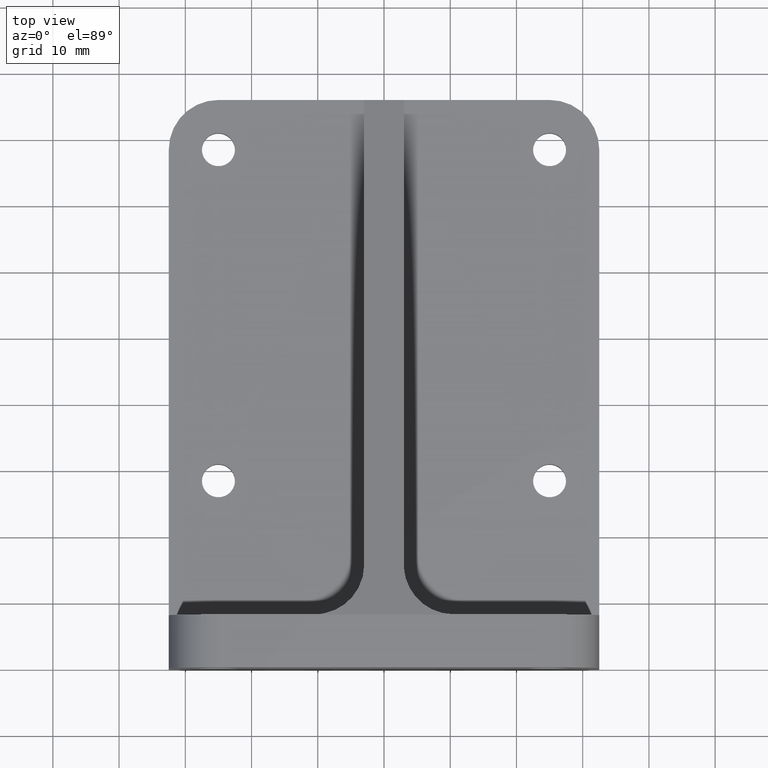
[diagram: clean part render]
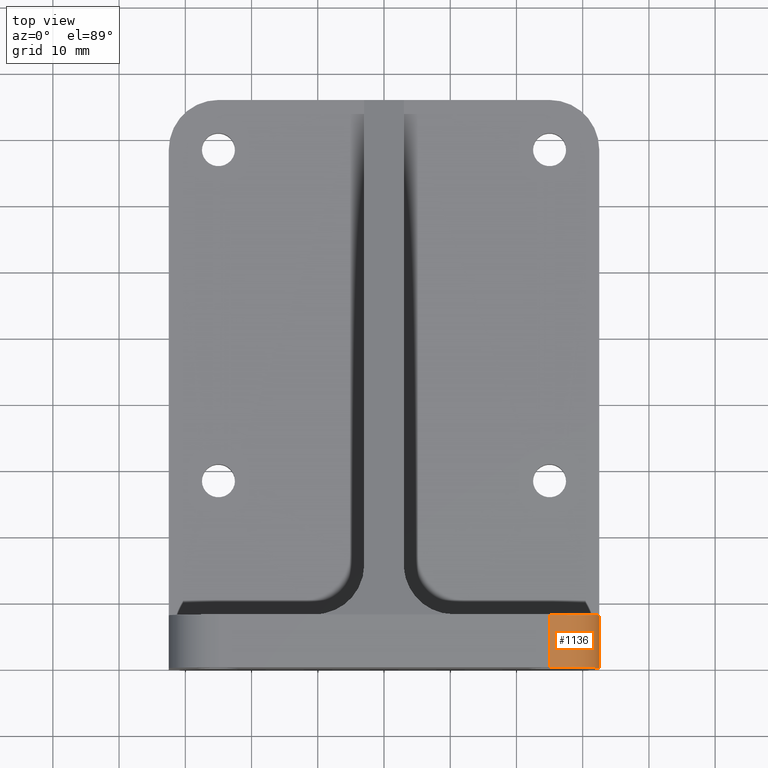
[diagram: same view with one face highlighted and labeled with its STEP entity id]
A machine part, top view. The second image highlights one B-rep face of the part: STEP entity #1136.
In plain terms, the highlighted cylindrical surface (partial cylindrical patch) has radius 7.5 mm, axis along (0, -1, 0).
Its self-contained STEP definition (entity closure, byte-faithful):
#45 = ORIENTED_EDGE ( 'NONE', *, *, #175, .F. ) ;
#89 = LINE ( 'NONE', #852, #658 ) ;
#109 = EDGE_LOOP ( 'NONE', ( #670, #153, #45, #728 ) ) ;
#139 = VERTEX_POINT ( 'NONE', #144 ) ;
#144 = CARTESIAN_POINT ( 'NONE',  ( 32.50000000000000000, 7.999999999999996447, 16.50000000000000000 ) ) ;
#153 = ORIENTED_EDGE ( 'NONE', *, *, #1070, .F. ) ;
#175 = EDGE_CURVE ( 'NONE', #673, #791, #441, .T. ) ;
#213 = DIRECTION ( 'NONE',  ( -0.0000000000000000000, 1.000000000000000000, -0.0000000000000000000 ) ) ;
#299 = DIRECTION ( 'NONE',  ( 0.0000000000000000000, -1.000000000000000000, 0.0000000000000000000 ) ) ;
#312 = VECTOR ( 'NONE', #391, 1000.000000000000000 ) ;
#315 = DIRECTION ( 'NONE',  ( 0.0000000000000000000, -1.224646799147352961E-16, 1.000000000000000000 ) ) ;
#391 = DIRECTION ( 'NONE',  ( 0.0000000000000000000, -1.000000000000000000, 0.0000000000000000000 ) ) ;
#405 = LINE ( 'NONE', #1159, #312 ) ;
#441 = CIRCLE ( 'NONE', #1078, 7.500000000000000000 ) ;
#449 = CIRCLE ( 'NONE', #965, 7.500000000000000000 ) ;
#457 = EDGE_CURVE ( 'NONE', #139, #673, #405, .T. ) ;
#470 = CYLINDRICAL_SURFACE ( 'NONE', #745, 7.500000000000000000 ) ;
#580 = DIRECTION ( 'NONE',  ( 0.0000000000000000000, 0.0000000000000000000, -1.000000000000000000 ) ) ;
#651 = CARTESIAN_POINT ( 'NONE',  ( 32.50000000000000000, -2.020667218593133100E-15, 16.50000000000000000 ) ) ;
#658 = VECTOR ( 'NONE', #213, 1000.000000000000000 ) ;
#670 = ORIENTED_EDGE ( 'NONE', *, *, #1059, .F. ) ;
#673 = VERTEX_POINT ( 'NONE', #651 ) ;
#683 = CARTESIAN_POINT ( 'NONE',  ( 25.00000000000000000, 7.999999999999996447, 16.50000000000000000 ) ) ;
#728 = ORIENTED_EDGE ( 'NONE', *, *, #457, .F. ) ;
#735 = CARTESIAN_POINT ( 'NONE',  ( 25.00000000000000000, 0.0000000000000000000, 16.50000000000000000 ) ) ;
#745 = AXIS2_PLACEMENT_3D ( 'NONE', #735, #299, #850 ) ;
#791 = VERTEX_POINT ( 'NONE', #1060 ) ;
#845 = DIRECTION ( 'NONE',  ( 0.0000000000000000000, 1.000000000000000000, 0.0000000000000000000 ) ) ;
#850 = DIRECTION ( 'NONE',  ( 0.0000000000000000000, 0.0000000000000000000, -1.000000000000000000 ) ) ;
#852 = CARTESIAN_POINT ( 'NONE',  ( 25.00000000000000000, -2.939152317953647894E-15, 24.00000000000000000 ) ) ;
#862 = VERTEX_POINT ( 'NONE', #1230 ) ;
#918 = FACE_OUTER_BOUND ( 'NONE', #109, .T. ) ;
#965 = AXIS2_PLACEMENT_3D ( 'NONE', #683, #845, #580 ) ;
#1059 = EDGE_CURVE ( 'NONE', #862, #139, #449, .T. ) ;
#1060 = CARTESIAN_POINT ( 'NONE',  ( 25.00000000000000000, -2.939152317953647894E-15, 24.00000000000000000 ) ) ;
#1070 = EDGE_CURVE ( 'NONE', #791, #862, #89, .T. ) ;
#1078 = AXIS2_PLACEMENT_3D ( 'NONE', #1088, #1166, #315 ) ;
#1088 = CARTESIAN_POINT ( 'NONE',  ( 25.00000000000000000, -2.020667218593133100E-15, 16.50000000000000000 ) ) ;
#1136 = ADVANCED_FACE ( 'NONE', ( #918 ), #470, .T. ) ;
#1159 = CARTESIAN_POINT ( 'NONE',  ( 32.50000000000000000, 0.0000000000000000000, 16.50000000000000000 ) ) ;
#1166 = DIRECTION ( 'NONE',  ( 0.0000000000000000000, -1.000000000000000000, -1.224646799147353207E-16 ) ) ;
#1230 = CARTESIAN_POINT ( 'NONE',  ( 25.00000000000000000, 7.999999999999996447, 24.00000000000000000 ) ) ;